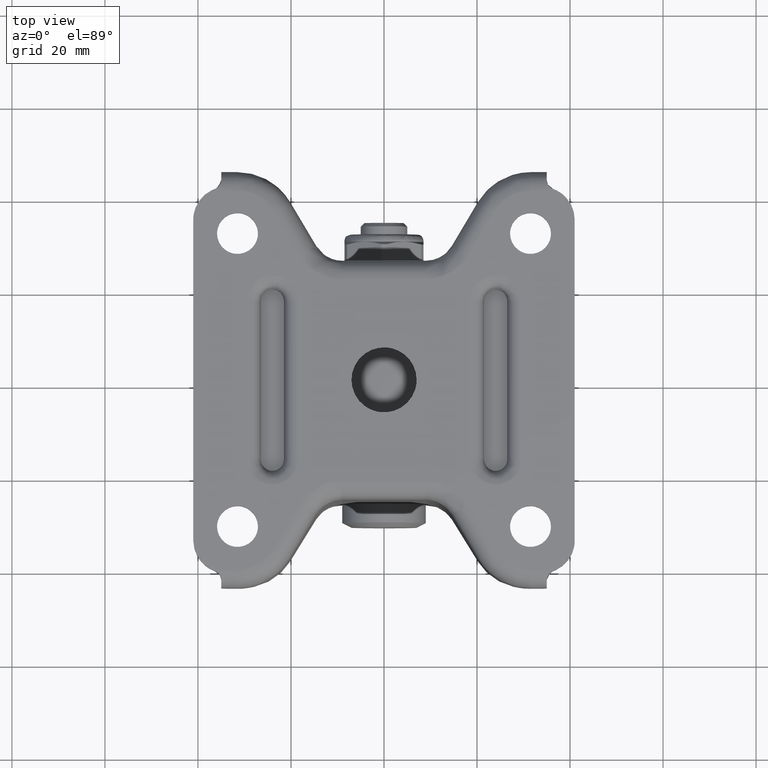
[diagram: clean part render]
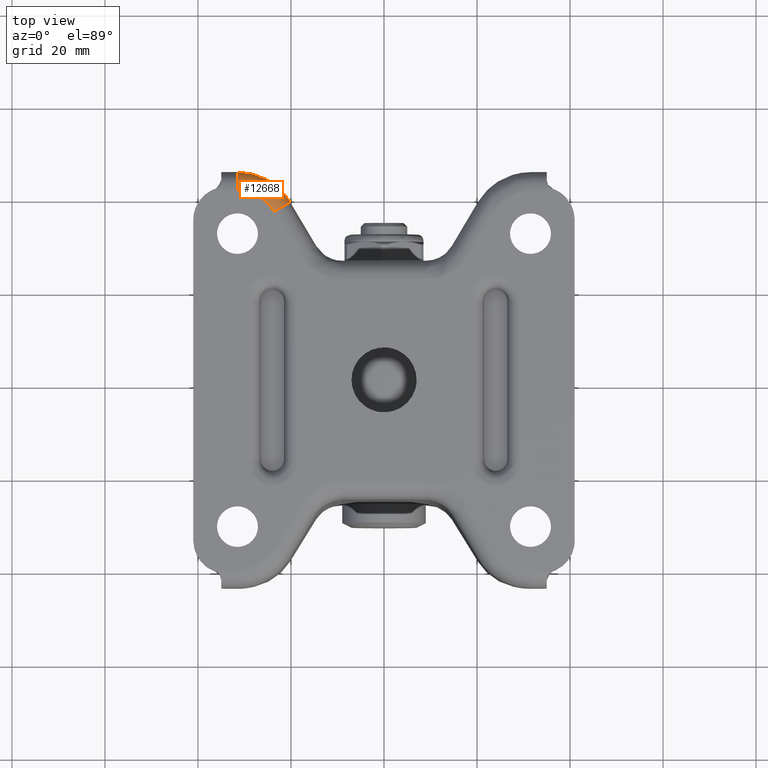
[diagram: same view with one face highlighted and labeled with its STEP entity id]
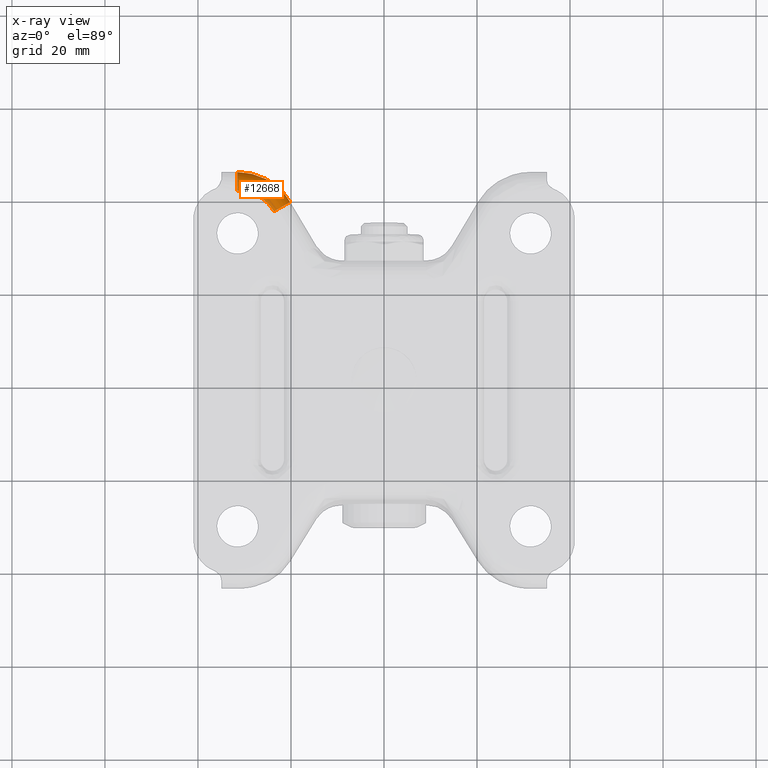
[diagram: x-ray of the same camera — body ghosted, the highlighted face saturated]
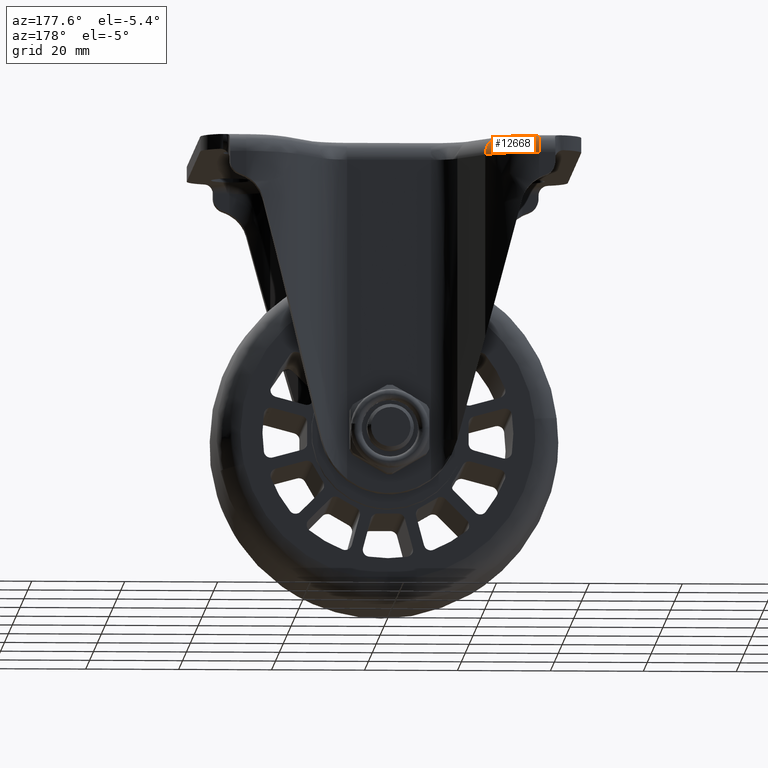
[diagram: same view with one face highlighted and labeled with its STEP entity id]
A machine part, top view. The second image highlights one B-rep face of the part: STEP entity #12668.
The next image is the same camera in x-ray: the body ghosted, the highlighted face saturated — about 0% of this face is hidden behind the body in this view.
A second angle (auxiliary view) of the same face is appended — the face is thin or edge-on in the first view.
In plain terms, the highlighted face is a freeform B-spline surface patch.
Its self-contained STEP definition (entity closure, byte-faithful):
#12535=CARTESIAN_POINT('',(-31.529700233232351,40.750002999999502,0.0));
#12536=VERTEX_POINT('',#12535);
#12542=CARTESIAN_POINT('',(-31.529703691150051,44.750002999999900,-4.0));
#12543=VERTEX_POINT('',#12542);
#12544=CARTESIAN_POINT('',(-31.529700233232351,40.750002999999502,0.0));
#12545=CARTESIAN_POINT('',(-31.529703691150054,44.750002999997996,0.0));
#12546=CARTESIAN_POINT('',(-31.529703691150051,44.750002999999900,-4.0));
#12554=(BOUNDED_CURVE()B_SPLINE_CURVE(2,(#12544,#12545,#12546),.UNSPECIFIED.,.F.,.U.)CURVE()GEOMETRIC_REPRESENTATION_ITEM()QUASI_UNIFORM_CURVE()RATIONAL_B_SPLINE_CURVE((1.0,0.707106781186548,1.0))REPRESENTATION_ITEM(''));
#12555=EDGE_CURVE('',#12536,#12543,#12554,.T.);
#12605=CARTESIAN_POINT('',(-31.967570302586502,40.460349023621049,-0.009735119646250));
#12606=CARTESIAN_POINT('',(-26.301749630125112,40.738775653542220,-0.009735119646250));
#12607=CARTESIAN_POINT('',(-23.646361365584170,35.725996140609467,-0.009735119646250));
#12608=CARTESIAN_POINT('',(-32.192771560920676,45.043064208929842,0.310962789712792));
#12609=CARTESIAN_POINT('',(-23.612940325447145,45.464689536359693,0.310962789712791));
#12610=CARTESIAN_POINT('',(-19.591848855829411,37.873767633263519,0.310962789712792));
#12611=CARTESIAN_POINT('',(-32.177115605263786,44.724474578214306,-4.277402579755448));
#12612=CARTESIAN_POINT('',(-23.799865920602617,45.136144754971809,-4.277402579755448));
#12613=CARTESIAN_POINT('',(-19.873717920561031,37.724454900737712,-4.277402579755450));
#12621=(BOUNDED_SURFACE()B_SPLINE_SURFACE(2,2,((#12605,#12608,#12611),(#12606,#12609,#12612),(#12607,#12610,#12613)),.UNSPECIFIED.,.F.,.F.,.U.)B_SPLINE_SURFACE_WITH_KNOTS((3,3),(3,3),(0.0,15.354117945844330),(0.0,7.289487710680157),.UNSPECIFIED.)GEOMETRIC_REPRESENTATION_ITEM()RATIONAL_B_SPLINE_SURFACE(((0.846862040855386,0.557276837737508,0.851578612917854),(0.715052065100199,0.470539396539985,0.719034525561002),(0.847875319846539,0.557943625106280,0.852597535335150)))REPRESENTATION_ITEM('')SURFACE());
#12622=CARTESIAN_POINT('',(-23.620816915980800,36.249941335855397,0.0));
#12623=VERTEX_POINT('',#12622);
#12624=CARTESIAN_POINT('',(-20.182168750000351,38.293393999999900,-4.0));
#12625=VERTEX_POINT('',#12624);
#12626=CARTESIAN_POINT('',(-23.620816915980800,36.249941335855397,0.0));
#12627=CARTESIAN_POINT('',(-20.182168750000567,38.293394000000276,0.0));
#12628=CARTESIAN_POINT('',(-20.182168750000351,38.293393999999900,-4.0));
#12636=(BOUNDED_CURVE()B_SPLINE_CURVE(2,(#12626,#12627,#12628),.UNSPECIFIED.,.F.,.U.)CURVE()GEOMETRIC_REPRESENTATION_ITEM()QUASI_UNIFORM_CURVE()RATIONAL_B_SPLINE_CURVE((1.0,0.707106781186548,1.0))REPRESENTATION_ITEM(''));
#12637=EDGE_CURVE('',#12623,#12625,#12636,.T.);
#12638=ORIENTED_EDGE('',*,*,#12637,.T.);
#12639=CARTESIAN_POINT('',(-31.529703691150051,44.750002999999900,-4.0));
#12640=CARTESIAN_POINT('',(-24.019072453883382,44.750001997416398,-4.000000000000001));
#12641=CARTESIAN_POINT('',(-20.182168750000351,38.293393999999900,-4.0));
#12649=(BOUNDED_CURVE()B_SPLINE_CURVE(2,(#12639,#12640,#12641),.UNSPECIFIED.,.F.,.U.)CURVE()GEOMETRIC_REPRESENTATION_ITEM()QUASI_UNIFORM_CURVE()RATIONAL_B_SPLINE_CURVE((1.0,0.869155659541045,1.0))REPRESENTATION_ITEM(''));
#12650=EDGE_CURVE('',#12543,#12625,#12649,.T.);
#12651=ORIENTED_EDGE('',*,*,#12650,.F.);
#12652=ORIENTED_EDGE('',*,*,#12555,.F.);
#12653=CARTESIAN_POINT('',(-23.620816915980800,36.249941335855397,0.0));
#12654=CARTESIAN_POINT('',(-26.295020717602952,40.750000029905038,0.0));
#12655=CARTESIAN_POINT('',(-31.529700233232351,40.750002999999502,0.0));
#12663=(BOUNDED_CURVE()B_SPLINE_CURVE(2,(#12653,#12654,#12655),.UNSPECIFIED.,.F.,.U.)CURVE()GEOMETRIC_REPRESENTATION_ITEM()QUASI_UNIFORM_CURVE()RATIONAL_B_SPLINE_CURVE((1.0,0.869155746850716,1.0))REPRESENTATION_ITEM(''));
#12664=EDGE_CURVE('',#12623,#12536,#12663,.T.);
#12665=ORIENTED_EDGE('',*,*,#12664,.F.);
#12666=EDGE_LOOP('',(#12638,#12651,#12652,#12665));
#12667=FACE_OUTER_BOUND('',#12666,.T.);
#12668=ADVANCED_FACE('',(#12667),#12621,.T.);